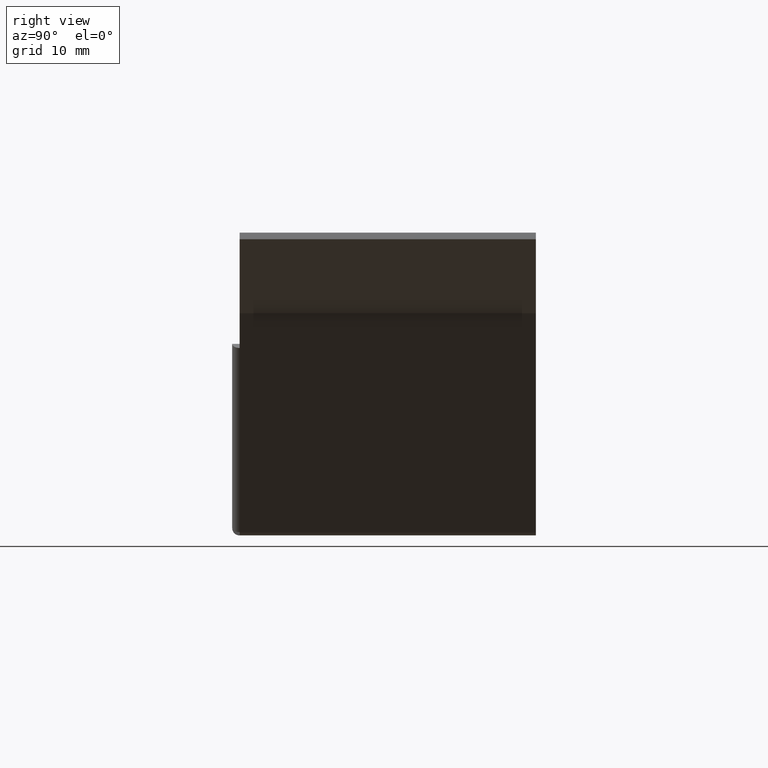
[diagram: clean part render]
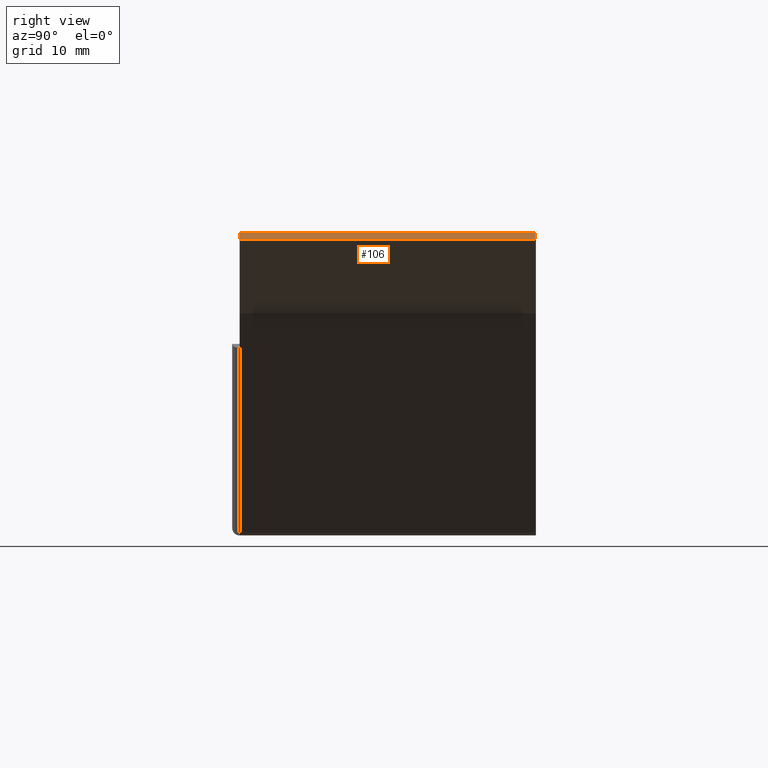
[diagram: same view with one face highlighted and labeled with its STEP entity id]
A machine part, right view. The second image highlights one B-rep face of the part: STEP entity #106.
In plain terms, the highlighted planar face has unit normal (-0.8944, -0, -0.4472).
Its self-contained STEP definition (entity closure, byte-faithful):
#106 = ADVANCED_FACE( '', ( #224 ), #225, .F. );
#224 = FACE_OUTER_BOUND( '', #370, .T. );
#225 = PLANE( '', #371 );
#370 = EDGE_LOOP( '', ( #612, #613, #614, #615 ) );
#371 = AXIS2_PLACEMENT_3D( '', #616, #617, #618 );
#612 = ORIENTED_EDGE( '', *, *, #849, .F. );
#613 = ORIENTED_EDGE( '', *, *, #845, .T. );
#614 = ORIENTED_EDGE( '', *, *, #850, .T. );
#615 = ORIENTED_EDGE( '', *, *, #851, .F. );
#616 = CARTESIAN_POINT( '', ( 80.0000000000000, 0.000000000000000, 40.0000000000000 ) );
#617 = DIRECTION( '', ( -0.894427190999916, -0.000000000000000, -0.447213595499958 ) );
#618 = DIRECTION( '', ( 0.000000000000000, -1.00000000000000, 0.000000000000000 ) );
#845 = EDGE_CURVE( '', #1003, #1006, #1008, .T. );
#849 = EDGE_CURVE( '', #1003, #1012, #1013, .T. );
#850 = EDGE_CURVE( '', #1006, #1014, #1015, .F. );
#851 = EDGE_CURVE( '', #1012, #1014, #1016, .T. );
#1003 = VERTEX_POINT( '', #1235 );
#1006 = VERTEX_POINT( '', #1240 );
#1008 = LINE( '', #1243, #1244 );
#1012 = VERTEX_POINT( '', #1248 );
#1013 = LINE( '', #1249, #1250 );
#1014 = VERTEX_POINT( '', #1251 );
#1015 = LINE( '', #1252, #1253 );
#1016 = LINE( '', #1254, #1255 );
#1235 = CARTESIAN_POINT( '', ( 80.0000000000000, 0.000000000000000, 40.0000000000000 ) );
#1240 = CARTESIAN_POINT( '', ( 79.5527864045000, 0.000000000000000, 40.8944271909999 ) );
#1243 = CARTESIAN_POINT( '', ( 80.0000000000000, 0.000000000000000, 40.0000000000000 ) );
#1244 = VECTOR( '', #1385, 1000.00000000000 );
#1248 = CARTESIAN_POINT( '', ( 80.0000000000000, -40.0000000000000, 40.0000000000000 ) );
#1249 = CARTESIAN_POINT( '', ( 80.0000000000000, 0.000000000000000, 40.0000000000000 ) );
#1250 = VECTOR( '', #1389, 1000.00000000000 );
#1251 = CARTESIAN_POINT( '', ( 79.5527864045000, -40.0000000000000, 40.8944271909999 ) );
#1252 = CARTESIAN_POINT( '', ( 79.5527864045000, 0.000000000000000, 40.8944271909999 ) );
#1253 = VECTOR( '', #1390, 1000.00000000000 );
#1254 = CARTESIAN_POINT( '', ( 80.0000000000000, -40.0000000000000, 40.0000000000000 ) );
#1255 = VECTOR( '', #1391, 1000.00000000000 );
#1385 = DIRECTION( '', ( -0.447213595499958, 0.000000000000000, 0.894427190999916 ) );
#1389 = DIRECTION( '', ( 0.000000000000000, -1.00000000000000, 0.000000000000000 ) );
#1390 = DIRECTION( '', ( 0.000000000000000, 1.00000000000000, 0.000000000000000 ) );
#1391 = DIRECTION( '', ( -0.447213595499958, 0.000000000000000, 0.894427190999916 ) );